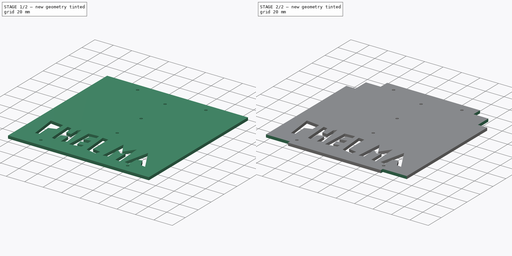
[diagram: build sequence overview — one tinted view per stage of 2, left to right]
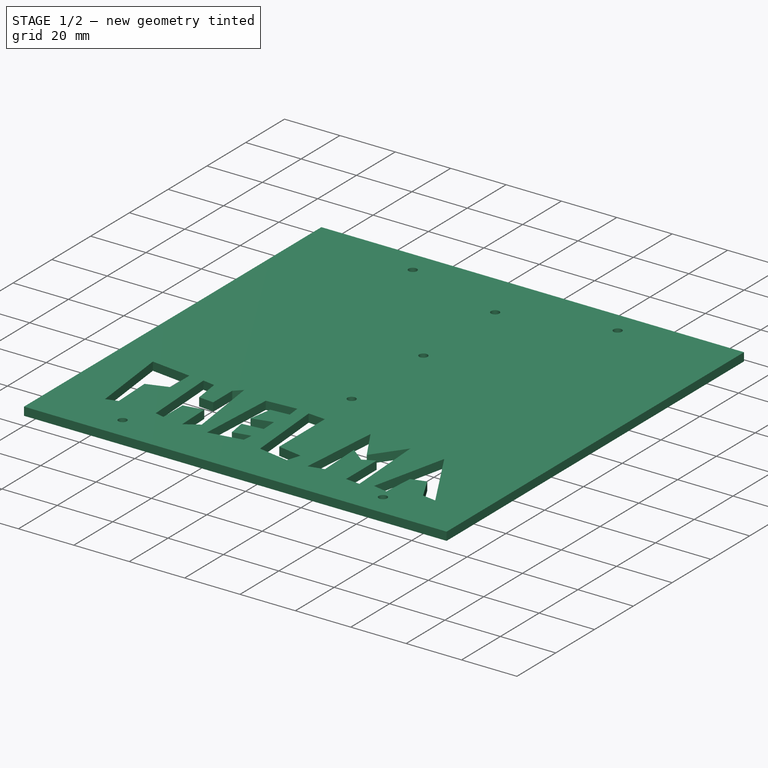
[diagram: stage 1 of 2 — iso view after this stage's code; geometry added in this stage tinted green]
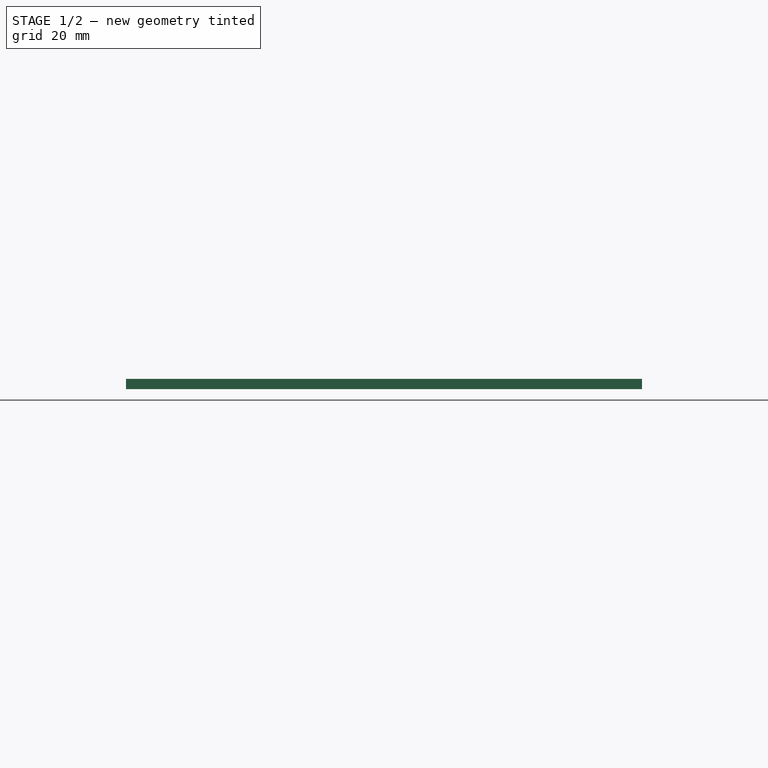
[diagram: stage 1 of 2 — front view after this stage's code; geometry added in this stage tinted green]
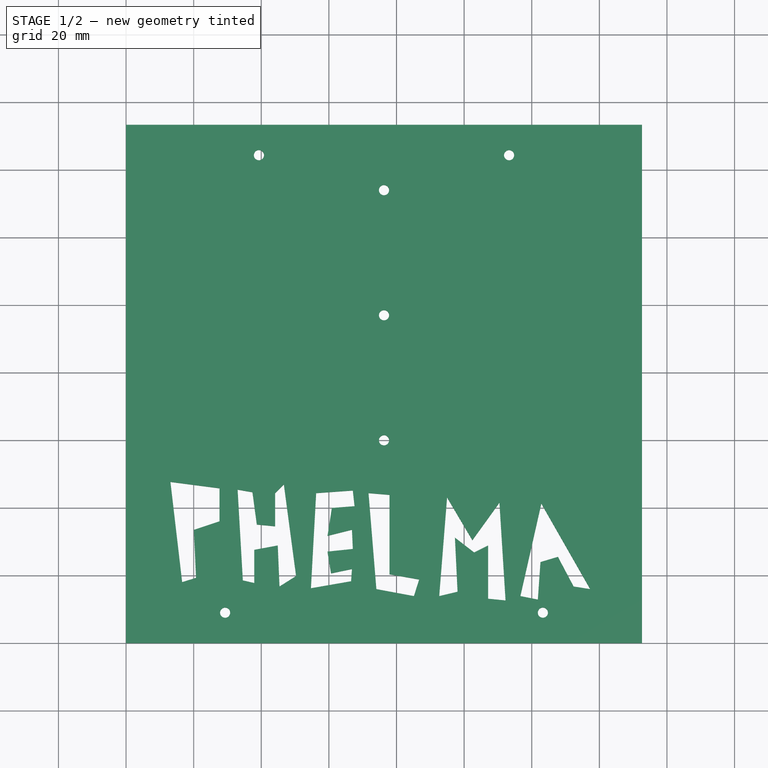
[diagram: stage 1 of 2 — top view after this stage's code; geometry added in this stage tinted green]
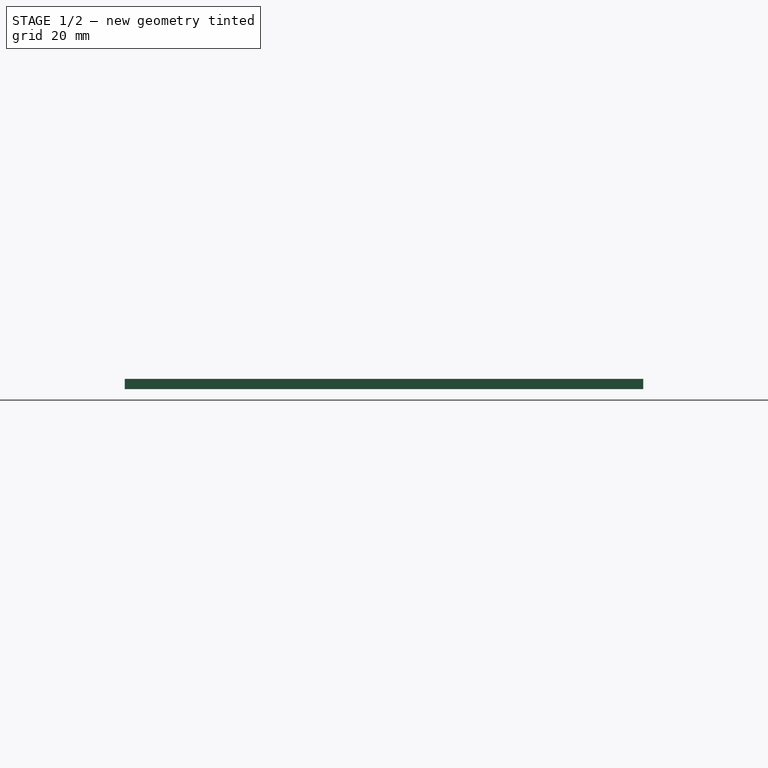
[diagram: stage 1 of 2 — right view after this stage's code; geometry added in this stage tinted green]
FCSTD DOCUMENT  (FreeCAD 0.16R6707 (Git))
Label: ar
License: All rights reserved
LicenseURL: http://en.wikipedia.org/wiki/All_rights_reserved
objects: Sketcher::SketchObject×2, PartDesign::Pad×1, PartDesign::Pocket×1
note: 6 computed .brp shape members not serialized (recipe doc carries the construction recipe); baked Part::Feature solids carry a one-line shape summary decoded from their .brp

FEATURE [Sketcher::SketchObject] Sketch
  sketch-geometry (64):
    g0: LineSegment StartX=0 StartY=0 StartZ=0 EndX=152.6 EndY=0 EndZ=0
    g1: LineSegment StartX=152.6 StartY=0 StartZ=0 EndX=152.6 EndY=153.35 EndZ=0
    g2: LineSegment StartX=152.6 StartY=153.35 StartZ=0 EndX=0 EndY=153.35 EndZ=0
    g3: LineSegment StartX=0 StartY=153.35 StartZ=0 EndX=0 EndY=0 EndZ=0
    g4: LineSegment StartX=16.5946 StartY=18.0455 StartZ=0 EndX=13.126 EndY=47.6862 EndZ=0
    g5: LineSegment StartX=13.126 StartY=47.6862 StartZ=0 EndX=27.631 EndY=45.7942 EndZ=0
    g6: LineSegment StartX=27.631 StartY=45.7942 StartZ=0 EndX=27.631 EndY=36.0191 EndZ=0
    g7: LineSegment StartX=27.631 StartY=36.0191 StartZ=0 EndX=20.0632 EndY=33.4965 EndZ=0
    g8: LineSegment StartX=20.0632 StartY=33.4965 StartZ=0 EndX=20.6939 EndY=19.3068 EndZ=0
    g9: LineSegment StartX=20.6939 StartY=19.3068 StartZ=0 EndX=16.5946 EndY=18.0455 EndZ=0
    g10: LineSegment StartX=32.9975 StartY=45.4048 StartZ=0 EndX=34.5465 EndY=18.5554 EndZ=0
    g11: LineSegment StartX=34.5465 StartY=18.5554 StartZ=0 EndX=37.9027 EndY=17.7809 EndZ=0
    g12: LineSegment StartX=37.9027 StartY=17.7809 StartZ=0 EndX=37.9027 EndY=27.5913 EndZ=0
    g13: LineSegment StartX=37.9027 StartY=27.5913 StartZ=0 EndX=44.8732 EndY=28.8821 EndZ=0
    g14: LineSegment StartX=44.8732 StartY=28.8821 StartZ=0 EndX=45.3895 EndY=16.7482 EndZ=0
    g15: LineSegment StartX=45.3895 StartY=16.7482 StartZ=0 EndX=50.2947 EndY=19.8462 EndZ=0
    g16: LineSegment StartX=50.2947 StartY=19.8462 StartZ=0 EndX=46.6804 EndY=46.9538 EndZ=0
    g17: LineSegment StartX=46.6804 StartY=46.9538 StartZ=0 EndX=44.0987 EndY=44.3722 EndZ=0
    g18: LineSegment StartX=44.0987 StartY=44.3722 StartZ=0 EndX=44.0987 EndY=34.5618 EndZ=0
    g19: LineSegment StartX=44.0987 StartY=34.5618 StartZ=0 EndX=38.6772 EndY=35.0781 EndZ=0
    g20: LineSegment StartX=38.6772 StartY=35.0781 StartZ=0 EndX=37.3864 EndY=44.6303 EndZ=0
    g21: LineSegment StartX=37.3864 StartY=44.6303 StartZ=0 EndX=32.9975 EndY=45.4048 EndZ=0
    g22: LineSegment StartX=56.2326 StartY=44.3722 StartZ=0 EndX=54.6836 EndY=16.2319 EndZ=0
    g23: LineSegment StartX=54.6836 StartY=16.2319 StartZ=0 EndX=66.5593 EndY=18.2972 EndZ=0
    g24: LineSegment StartX=66.5593 StartY=18.2972 StartZ=0 EndX=66.8175 EndY=21.9116 EndZ=0
    g25: LineSegment StartX=66.8175 StartY=21.9116 StartZ=0 EndX=60.6214 EndY=20.6207 EndZ=0
    g26: LineSegment StartX=60.6214 StartY=20.6207 StartZ=0 EndX=59.5888 EndY=27.0749 EndZ=0
    g27: LineSegment StartX=59.5888 StartY=27.0749 StartZ=0 EndX=67.0756 EndY=27.8494 EndZ=0
    g28: LineSegment StartX=67.0756 StartY=27.8494 StartZ=0 EndX=66.8175 EndY=33.5291 EndZ=0
    g29: LineSegment StartX=66.8175 StartY=33.5291 StartZ=0 EndX=59.5888 EndY=31.7219 EndZ=0
    g30: LineSegment StartX=59.5888 StartY=31.7219 StartZ=0 EndX=60.8796 EndY=39.9833 EndZ=0
    g31: LineSegment StartX=60.8796 StartY=39.9833 StartZ=0 EndX=67.592 EndY=40.4996 EndZ=0
    g32: LineSegment StartX=67.592 StartY=40.4996 StartZ=0 EndX=67.0756 EndY=45.1467 EndZ=0
    g33: LineSegment StartX=67.0756 StartY=45.1467 StartZ=0 EndX=56.2326 EndY=44.3722 EndZ=0
    g34: LineSegment StartX=71.7226 StartY=44.3722 StartZ=0 EndX=74.0462 EndY=15.9737 EndZ=0
    g35: LineSegment StartX=74.0462 StartY=15.9737 StartZ=0 EndX=85.1474 EndY=13.9084 EndZ=0
    g36: LineSegment StartX=85.1474 StartY=13.9084 StartZ=0 EndX=86.6964 EndY=18.8136 EndZ=0
    g37: LineSegment StartX=86.6964 StartY=18.8136 StartZ=0 EndX=77.9187 EndY=20.3626 EndZ=0
    g38: LineSegment StartX=77.9187 StartY=20.3626 StartZ=0 EndX=77.9187 EndY=43.8558 EndZ=0
    g39: LineSegment StartX=77.9187 StartY=43.8558 StartZ=0 EndX=71.7226 EndY=44.3722 EndZ=0
    g40: LineSegment StartX=92.6342 StartY=13.9084 StartZ=0 EndX=94.9577 EndY=43.0813 EndZ=0
    g41: LineSegment StartX=94.9577 StartY=43.0813 StartZ=0 EndX=102.445 EndY=30.4311 EndZ=0
    g42: LineSegment StartX=102.445 StartY=30.4311 StartZ=0 EndX=110.448 EndY=41.5323 EndZ=0
    g43: LineSegment StartX=110.448 StartY=41.5323 StartZ=0 EndX=112.255 EndY=12.6175 EndZ=0
    g44: LineSegment StartX=112.255 StartY=12.6175 StartZ=0 EndX=107.092 EndY=13.1339 EndZ=0
    g45: LineSegment StartX=107.092 StartY=13.1339 StartZ=0 EndX=107.092 EndY=28.8821 EndZ=0
    g46: LineSegment StartX=107.092 StartY=28.8821 StartZ=0 EndX=102.961 EndY=26.8168 EndZ=0
    g47: LineSegment StartX=102.961 StartY=26.8168 StartZ=0 EndX=97.2812 EndY=31.2056 EndZ=0
    g48: LineSegment StartX=97.2812 StartY=31.2056 StartZ=0 EndX=98.0558 EndY=15.1992 EndZ=0
    g49: LineSegment StartX=98.0558 StartY=15.1992 StartZ=0 EndX=92.6342 EndY=13.9084 EndZ=0
    g50: LineSegment StartX=116.644 StartY=13.9084 StartZ=0 EndX=122.84 EndY=41.2741 EndZ=0
    g51: LineSegment StartX=122.84 StartY=41.2741 StartZ=0 EndX=137.297 EndY=15.9737 EndZ=0
    g52: LineSegment StartX=137.297 StartY=15.9737 StartZ=0 EndX=132.392 EndY=16.7482 EndZ=0
    g53: LineSegment StartX=132.392 StartY=16.7482 StartZ=0 EndX=127.745 EndY=25.5259 EndZ=0
    g54: LineSegment StartX=127.745 StartY=25.5259 StartZ=0 EndX=122.582 EndY=23.9769 EndZ=0
    g55: LineSegment StartX=122.582 StartY=23.9769 StartZ=0 EndX=121.807 EndY=12.8757 EndZ=0
    g56: LineSegment StartX=121.807 StartY=12.8757 StartZ=0 EndX=116.644 EndY=13.9084 EndZ=0
    g57: Circle CenterX=76.3 CenterY=60 CenterZ=0 NormalX=0 NormalY=0 NormalZ=1 Radius=1.5
    g58: Circle CenterX=76.3 CenterY=97 CenterZ=0 NormalX=0 NormalY=0 NormalZ=1 Radius=1.5
    g59: Circle CenterX=76.3 CenterY=134 CenterZ=0 NormalX=0 NormalY=0 NormalZ=1 Radius=1.5
    g60: Circle CenterX=29.3 CenterY=9 CenterZ=0 NormalX=0 NormalY=0 NormalZ=1 Radius=1.5
    g61: Circle CenterX=123.3 CenterY=9 CenterZ=0 NormalX=0 NormalY=0 NormalZ=1 Radius=1.5
    g62: Circle CenterX=39.3 CenterY=144.35 CenterZ=0 NormalX=0 NormalY=0 NormalZ=1 Radius=1.5
    g63: Circle CenterX=113.3 CenterY=144.35 CenterZ=0 NormalX=0 NormalY=0 NormalZ=1 Radius=1.5
  constraints (90):
    c: Coincident(g0,g1)
    c: Coincident(g1,g2)
    c: Coincident(g2,g3)
    c: Coincident(g3,g0)
    c: Horizontal(g0)
    c: Horizontal(g2)
    c: Vertical(g1)
    c: Vertical(g3)
    c: Coincident(g0,g-1)
    c: Distance(g3) = 153.35
    c: Distance(g0) = 152.6
    c: Coincident(g4,g5)
    c: Coincident(g5,g6)
    c: Vertical(g6)
    c: Coincident(g6,g7)
    c: Coincident(g7,g8)
    c: Coincident(g8,g9)
    c: Coincident(g9,g4)
    c: Coincident(g10,g11)
    c: Coincident(g11,g12)
    c: Vertical(g12)
    c: Coincident(g12,g13)
    c: Coincident(g13,g14)
    c: Coincident(g14,g15)
    c: Coincident(g15,g16)
    c: Coincident(g16,g17)
    c: Coincident(g17,g18)
    c: Vertical(g18)
    c: Coincident(g18,g19)
    c: Coincident(g19,g20)
    c: Coincident(g20,g21)
    c: Coincident(g21,g10)
    c: Coincident(g22,g23)
    c: Coincident(g23,g24)
    c: Coincident(g24,g25)
    c: Coincident(g25,g26)
    c: Coincident(g26,g27)
    c: Coincident(g27,g28)
    c: Coincident(g28,g29)
    c: Coincident(g29,g30)
    c: Coincident(g30,g31)
    c: Coincident(g31,g32)
    c: Coincident(g32,g33)
    c: Coincident(g33,g22)
    c: Coincident(g34,g35)
    c: Coincident(g35,g36)
    c: Coincident(g36,g37)
    c: Coincident(g37,g38)
    c: Vertical(g38)
    c: Coincident(g38,g39)
    c: Coincident(g39,g34)
    c: Coincident(g40,g41)
    c: Coincident(g41,g42)
    c: Coincident(g42,g43)
    c: Coincident(g43,g44)
    c: Coincident(g44,g45)
    c: Vertical(g45)
    c: Coincident(g45,g46)
    c: Coincident(g46,g47)
    c: Coincident(g47,g48)
    c: Coincident(g48,g49)
    c: Coincident(g49,g40)
    c: Coincident(g50,g51)
    c: Coincident(g51,g52)
    c: Coincident(g52,g53)
    c: Coincident(g53,g54)
    c: Coincident(g54,g55)
    c: Coincident(g55,g56)
    c: Coincident(g56,g50)
    c: DistanceY(g57) = 60
    c: DistanceY(g57,g58) = 37
    c: DistanceY(g58,g59) = 37
    c: Radius(g59) = 1.5
    c: Equal(g59,g58)
    c: Equal(g59,g57)
    c: DistanceX(g59,g58) = 0
    c: DistanceX(g58,g57) = 0
    c: DistanceX(g57) = 76.3
    c: DistanceX(g60) = 29.3
    c: DistanceX(g61,g0) = 29.3
    c: DistanceY(g60) = 9
    c: DistanceY(g61) = 9
    c: DistanceX(g2,g62) = 39.3
    c: DistanceX(g63,g1) = 39.3
    c: DistanceY(g63,g1) = 9
    c: DistanceY(g62,g2) = 9
    c: Radius(g62) = 1.5
    c: Equal(g62,g63)
    c: Equal(g62,g61)
    c: Equal(g62,g60)
FEATURE [PartDesign::Pad] Pad
  Length = 3
  Length2 = 100
  Sketch = -> Sketch
  Type = 0
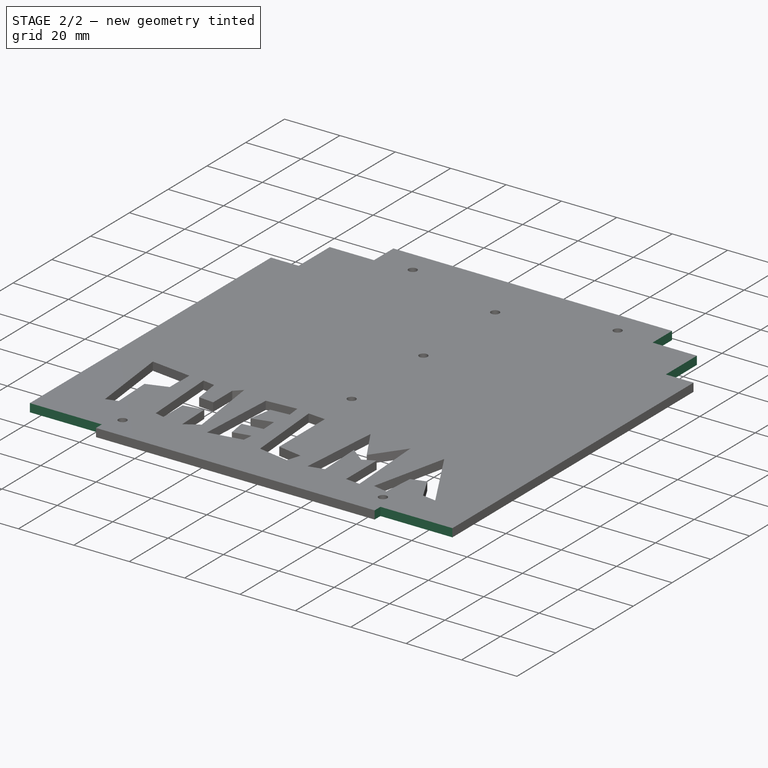
[diagram: stage 2 of 2 — iso view after this stage's code; geometry added in this stage tinted green]
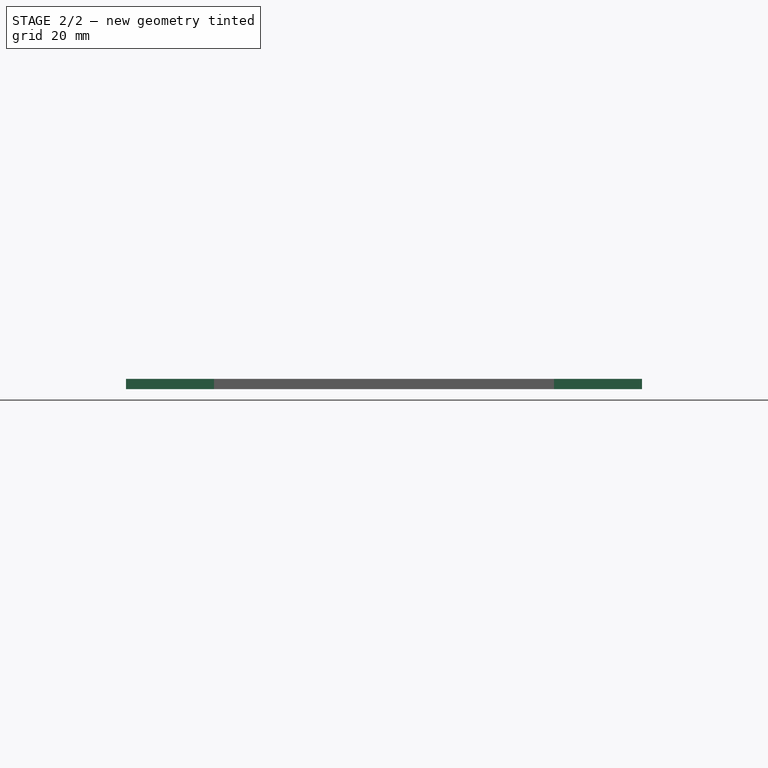
[diagram: stage 2 of 2 — front view after this stage's code; geometry added in this stage tinted green]
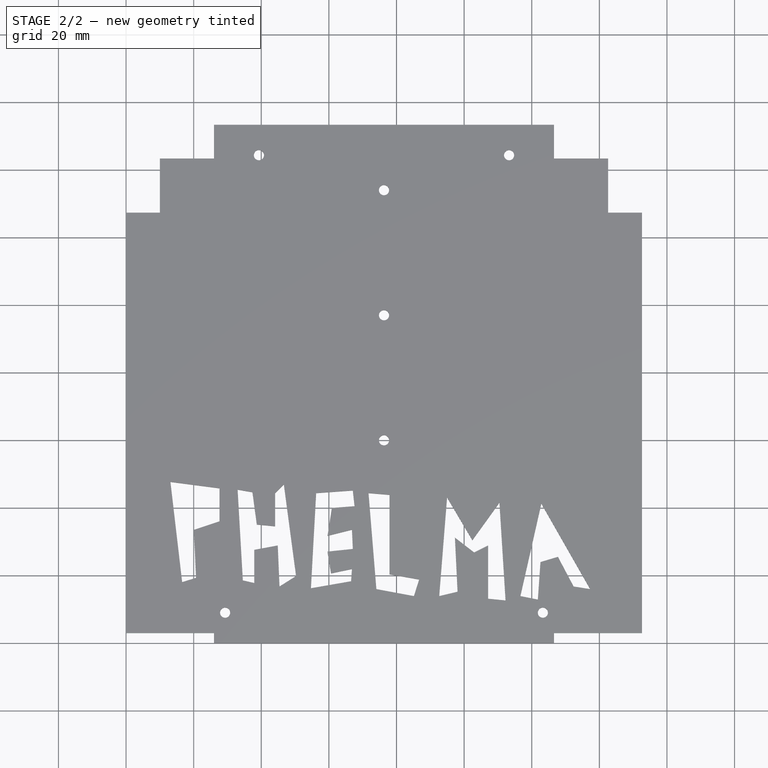
[diagram: stage 2 of 2 — top view after this stage's code; geometry added in this stage tinted green]
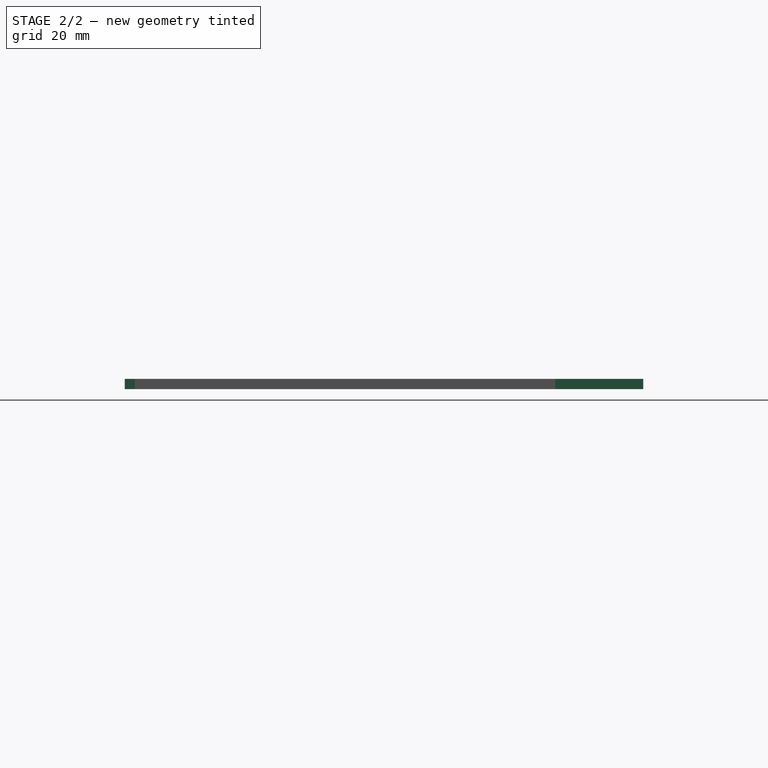
[diagram: stage 2 of 2 — right view after this stage's code; geometry added in this stage tinted green]
FEATURE [Sketcher::SketchObject] Sketch001
  Placement = pos=(0,0,3) rot=(0,0,1;0rad)
  Support = -> Pad [Face66]
  sketch-geometry (22):
    g0: LineSegment StartX=0 StartY=153.35 StartZ=0 EndX=26 EndY=153.35 EndZ=0
    g1: LineSegment StartX=26 StartY=153.35 StartZ=0 EndX=26 EndY=143.35 EndZ=0
    g2: LineSegment StartX=0 StartY=146.35 StartZ=0 EndX=0 EndY=153.35 EndZ=0
    g3: LineSegment StartX=0 StartY=3 StartZ=0 EndX=26 EndY=3 EndZ=0
    g4: LineSegment StartX=26 StartY=3 StartZ=0 EndX=26 EndY=0 EndZ=0
    g5: LineSegment StartX=26 StartY=0 StartZ=0 EndX=0 EndY=0 EndZ=0
    g6: LineSegment StartX=0 StartY=0 StartZ=0 EndX=0 EndY=3 EndZ=0
    g7: LineSegment StartX=126.6 StartY=153.35 StartZ=0 EndX=152.6 EndY=153.35 EndZ=0
    g8: LineSegment StartX=152.6 StartY=153.35 StartZ=0 EndX=152.6 EndY=146.35 EndZ=0
    g9: LineSegment StartX=126.6 StartY=143.35 StartZ=0 EndX=126.6 EndY=153.35 EndZ=0
    g10: LineSegment StartX=126.6 StartY=3 StartZ=0 EndX=152.6 EndY=3 EndZ=0
    g11: LineSegment StartX=152.6 StartY=3 StartZ=0 EndX=152.6 EndY=0 EndZ=0
    g12: LineSegment StartX=152.6 StartY=0 StartZ=0 EndX=126.6 EndY=0 EndZ=0
    g13: LineSegment StartX=126.6 StartY=0 StartZ=0 EndX=126.6 EndY=3 EndZ=0
    g14: LineSegment StartX=26 StartY=143.35 StartZ=0 EndX=10 EndY=143.35 EndZ=0
    g15: LineSegment StartX=10 StartY=143.35 StartZ=0 EndX=10 EndY=127.35 EndZ=0
    g16: LineSegment StartX=10 StartY=127.35 StartZ=0 EndX=0 EndY=127.35 EndZ=0
    g17: LineSegment StartX=0 StartY=127.35 StartZ=0 EndX=0 EndY=146.35 EndZ=0
    g18: LineSegment StartX=126.6 StartY=143.35 StartZ=0 EndX=142.6 EndY=143.35 EndZ=0
    g19: LineSegment StartX=142.6 StartY=143.35 StartZ=0 EndX=142.6 EndY=127.35 EndZ=0
    g20: LineSegment StartX=142.6 StartY=127.35 StartZ=0 EndX=152.6 EndY=127.35 EndZ=0
    g21: LineSegment StartX=152.6 StartY=127.35 StartZ=0 EndX=152.6 EndY=146.35 EndZ=0
  constraints (66):
    c: Coincident(g0,g1)
    c: Coincident(g2,g0)
    c: Horizontal(g0)
    c: Vertical(g1)
    c: Vertical(g2)
    c: Coincident(g3,g4)
    c: Coincident(g4,g5)
    c: Coincident(g5,g6)
    c: Coincident(g6,g3)
    c: Horizontal(g3)
    c: Horizontal(g5)
    c: Vertical(g4)
    c: Vertical(g6)
    c: Coincident(g7,g8)
    c: Coincident(g9,g7)
    c: Horizontal(g7)
    c: Vertical(g8)
    c: Vertical(g9)
    c: Coincident(g10,g11)
    c: Coincident(g11,g12)
    c: Coincident(g12,g13)
    c: Coincident(g13,g10)
    c: Horizontal(g10)
    c: Horizontal(g12)
    c: Vertical(g11)
    c: Vertical(g13)
    c: DistanceY(g0) = 153.35
    c: DistanceX(g0) = 0
    c: DistanceX(g7) = 152.6
    c: DistanceY(g7,g0) = 0
    c: DistanceY(g5) = 0
    c: DistanceX(g5) = 0
    c: DistanceY(g11) = 0
    c: DistanceX(g11) = 152.6
    c: Distance(g3) = 26
    c: Distance(g10) = 26
    c: Distance(g4) = 3
    c: Distance(g13) = 3
    c: Distance(g1) = 10
    c: Distance(g9) = 10
    c: Distance(g0) = 26
    c: Distance(g7) = 26
    c: Distance(g2) = 7
    c: Distance(g8) = 7
    c: Coincident(g14,g1)
    c: Horizontal(g14)
    c: Coincident(g14,g15)
    c: Vertical(g15)
    c: Coincident(g15,g16)
    c: PointOnObject(g16,g-2)
    c: Horizontal(g16)
    c: Coincident(g16,g17)
    c: Coincident(g17,g2)
    c: Coincident(g9,g18)
    c: Horizontal(g18)
    c: Coincident(g18,g19)
    c: Vertical(g19)
    c: Coincident(g19,g20)
    c: Horizontal(g20)
    c: Coincident(g20,g21)
    c: Coincident(g21,g8)
    c: Vertical(g21)
    c: DistanceY(g16,g0) = 26
    c: DistanceY(g20,g7) = 26
    c: Distance(g16) = 10
    c: Distance(g20) = 10
FEATURE [PartDesign::Pocket] Pocket
  Length = 5
  Sketch = -> Sketch001
  Type = 1
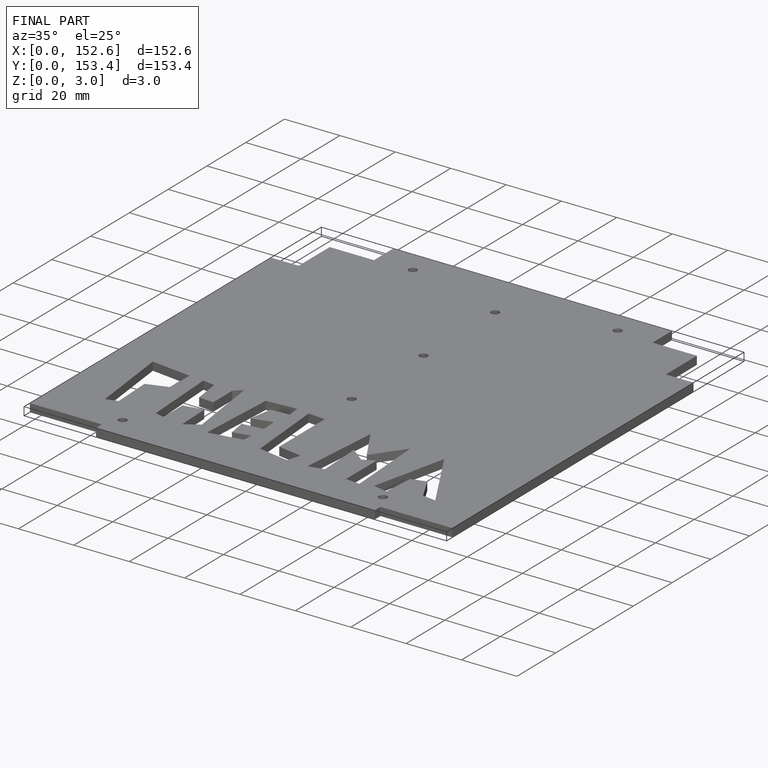
[diagram: finished part — iso view with bounding-box wireframe]
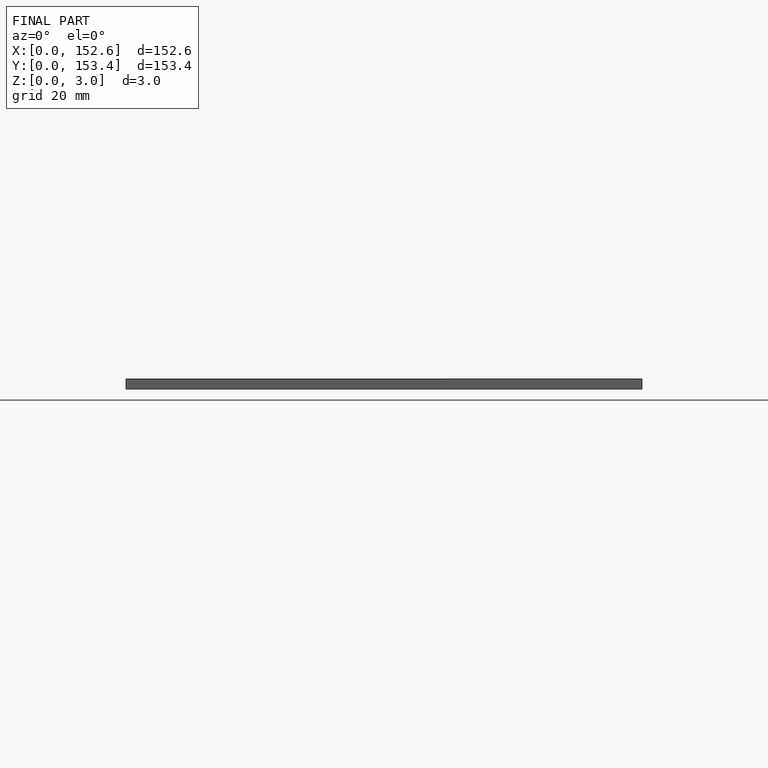
[diagram: finished part — front view with bounding-box wireframe]
